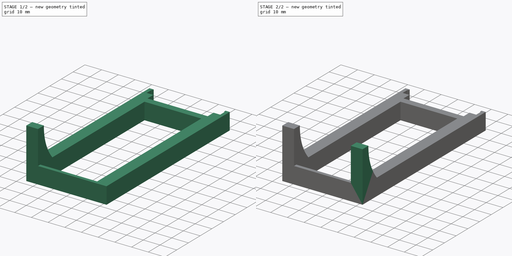
[diagram: build sequence overview — one tinted view per stage of 2, left to right]
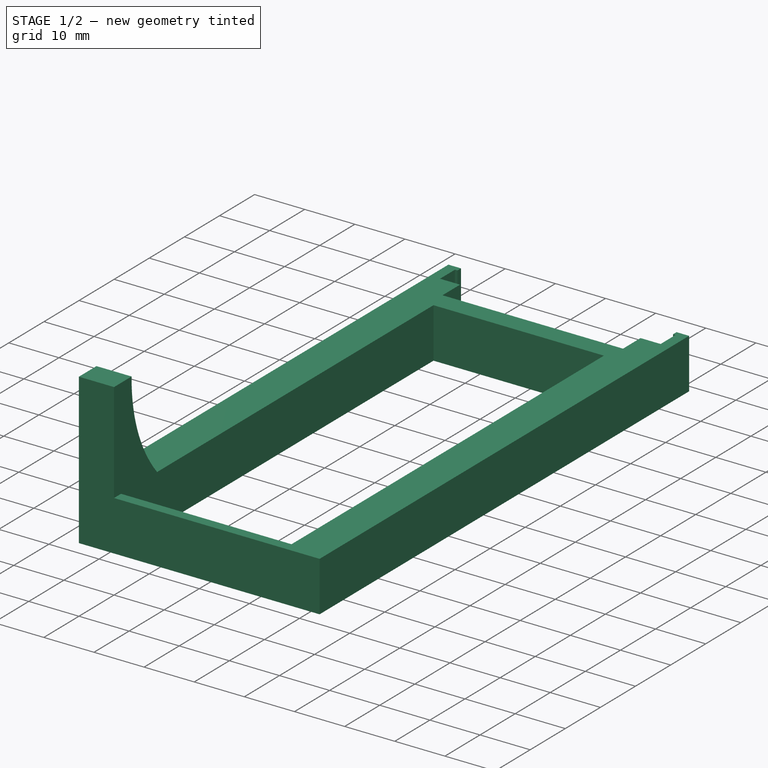
[diagram: stage 1 of 2 — iso view after this stage's code; geometry added in this stage tinted green]
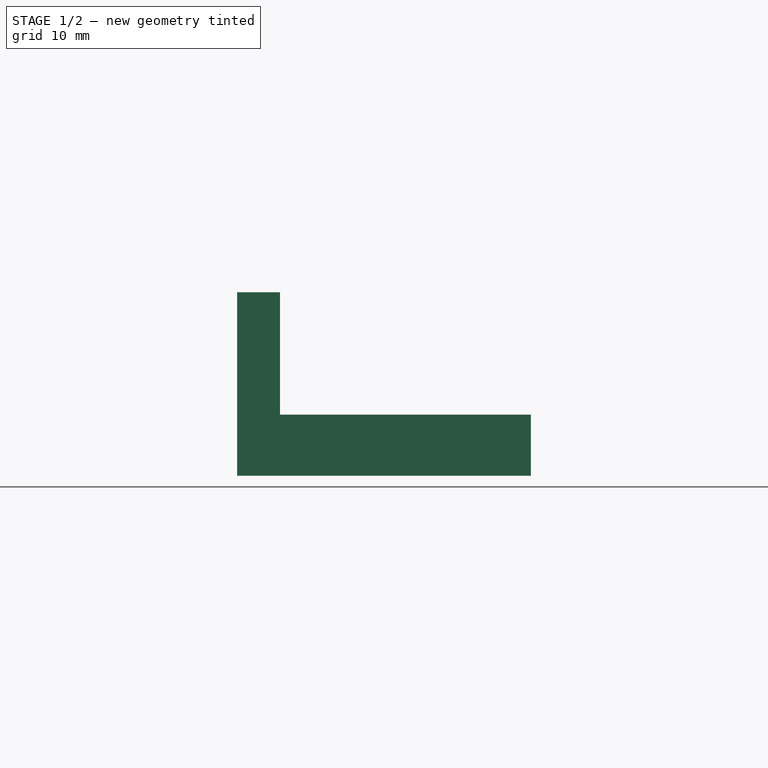
[diagram: stage 1 of 2 — front view after this stage's code; geometry added in this stage tinted green]
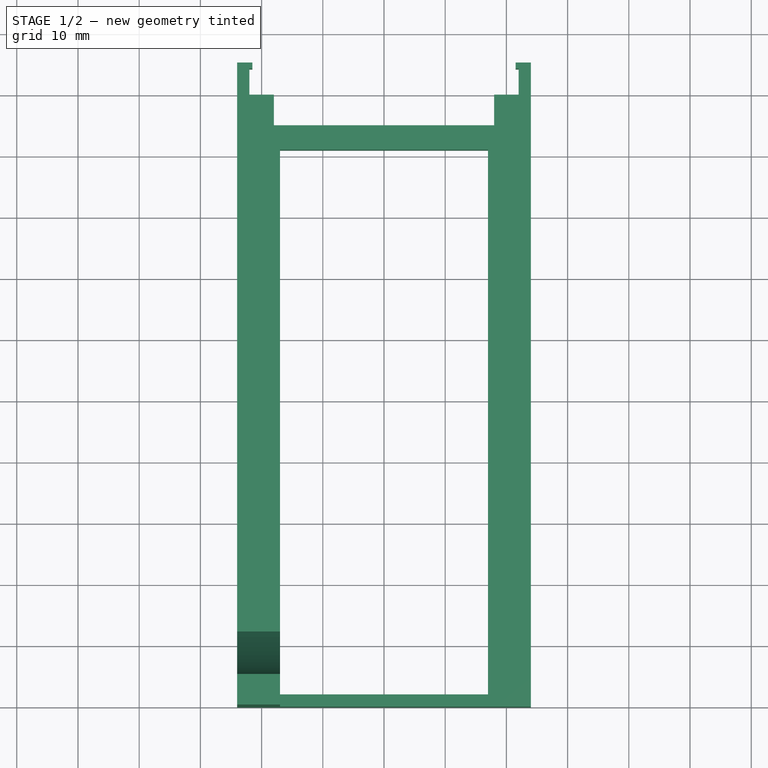
[diagram: stage 1 of 2 — top view after this stage's code; geometry added in this stage tinted green]
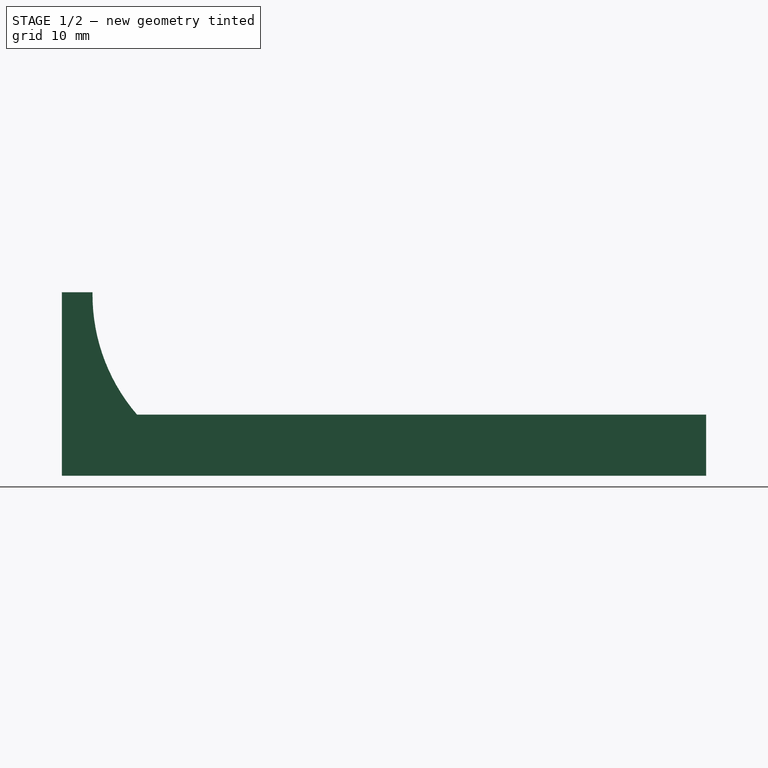
[diagram: stage 1 of 2 — right view after this stage's code; geometry added in this stage tinted green]
FCSTD DOCUMENT  (FreeCAD 0.18R15441 (Git))
Label: XZAxisMaintenanceStand_Right
License: All rights reserved
LicenseURL: http://en.wikipedia.org/wiki/All_rights_reserved
objects: Sketcher::SketchObject×3, PartDesign::Pad×3, PartDesign::Plane×2, PartDesign::Body×1, Part::FeaturePython×1, App::Part×1
note: 13 computed .brp shape members not serialized (recipe doc carries the construction recipe); baked Part::Feature solids carry a one-line shape summary decoded from their .brp

FEATURE [Sketcher::SketchObject] Sketch  label="BaseSketch"
  MapMode = 5
  Support = -> [XY_Plane001]
  sketch-geometry (20):
    g0: LineSegment StartX=-22 StartY=0 StartZ=0 EndX=-18 EndY=0 EndZ=0
    g1: LineSegment StartX=-18 StartY=0 StartZ=0 EndX=-18 EndY=-5 EndZ=0
    g2: LineSegment StartX=-18 StartY=-5 StartZ=0 EndX=18 EndY=-5 EndZ=0
    g3: LineSegment StartX=18 StartY=-5 StartZ=0 EndX=18 EndY=0 EndZ=0
    g4: LineSegment StartX=18 StartY=0 StartZ=0 EndX=22 EndY=0 EndZ=0
    g5: LineSegment StartX=-22 StartY=4.25 StartZ=0 EndX=-21.5 EndY=4.25 EndZ=0
    g6: LineSegment StartX=22 StartY=4.25 StartZ=0 EndX=21.5 EndY=4.25 EndZ=0
    g7: LineSegment StartX=21.5 StartY=4.25 StartZ=0 EndX=21.5 EndY=5.25 EndZ=0
    g8: LineSegment StartX=21.5 StartY=5.25 StartZ=0 EndX=24 EndY=5.25 EndZ=0
    g9: LineSegment StartX=24 StartY=5.25 StartZ=0 EndX=24 EndY=-100 EndZ=0
    g10: LineSegment StartX=-21.5 StartY=4.25 StartZ=0 EndX=-21.5 EndY=5.25 EndZ=0
    g11: LineSegment StartX=-21.5 StartY=5.25 StartZ=0 EndX=-24 EndY=5.25 EndZ=0
    g12: LineSegment StartX=-24 StartY=5.25 StartZ=0 EndX=-24 EndY=-100 EndZ=0
    g13: LineSegment StartX=-17 StartY=-9 StartZ=0 EndX=17 EndY=-9 EndZ=0
    g14: LineSegment StartX=-22 StartY=4.25 StartZ=0 EndX=-22 EndY=0 EndZ=0
    g15: LineSegment StartX=22 StartY=0 StartZ=0 EndX=22 EndY=4.25 EndZ=0
    g16: LineSegment StartX=17 StartY=-9 StartZ=0 EndX=17 EndY=-98 EndZ=0
    g17: LineSegment StartX=-17 StartY=-9 StartZ=0 EndX=-17 EndY=-98 EndZ=0
    g18: LineSegment StartX=-17 StartY=-98 StartZ=0 EndX=17 EndY=-98 EndZ=0
    g19: LineSegment StartX=-24 StartY=-100 StartZ=0 EndX=24 EndY=-100 EndZ=0
  constraints (59):
    c: PointOnObject(g0,g-1)
    c: Coincident(g1,g0)
    c: Coincident(g2,g1)
    c: Horizontal(g2)
    c: Coincident(g3,g2)
    c: Vertical(g3)
    c: Coincident(g4,g3)
    c: Horizontal(g0)
    c: Horizontal(g4)
    c: Vertical(g1)
    c: Symmetric(g0,g4,g-2)
    c: Equal(g0,g4)
    c: Horizontal(g5)
    c: Horizontal(g6)
    c: Coincident(g7,g6)
    c: Vertical(g7)
    c: Coincident(g8,g7)
    c: Horizontal(g8)
    c: Coincident(g9,g8)
    c: Vertical(g9)
    c: Coincident(g10,g5)
    c: Vertical(g10)
    c: Coincident(g11,g10)
    c: Horizontal(g11)
    c: Coincident(g12,g11)
    c: Vertical(g12)
    c: Equal(g8,g11)
    c: Equal(g5,g6)
    c: Equal(g10,g7)
    c: Equal(g12,g9)
    c: Horizontal(g13)
    c: Distance(g0,g4) = 44
    c: Distance(g5) = 0.5
    c: Distance(g10) = 1
    c: Distance(g13,g2) = 4
    c: Distance(g0) = 4
    c: Distance(g1) = 5
    c: Coincident(g14,g5)
    c: Vertical(g14)
    c: Coincident(g15,g6)
    c: Vertical(g15)
    c: Equal(g14,g15)
    c: Distance(g5,g0) = 4.25
    c: Coincident(g16,g13)
    c: Vertical(g16)
    c: Coincident(g17,g13)
    c: Vertical(g17)
    c: Coincident(g18,g17)
    c: Coincident(g18,g16)
    c: Coincident(g19,g12)
    c: Coincident(g19,g9)
    c: Horizontal(g18)
    c: Distance(g17,g12) = 7
    c: Distance(g17,g19) = 2
    c: Distance(g16,g9) = 7
    c: Coincident(g14,g0)
    c: Coincident(g15,g4)
    c: Distance(g0,g12) = 2
    c: Distance(g0,g19) = 100
FEATURE [PartDesign::Pad] Pad  label="BasePad"
  Length = 10
  Length2 = 100
  Profile = -> Sketch
  Type = 0
FEATURE [PartDesign::Plane] DatumPlane  label="SupportPlane1"
  AttachmentOffset = pos=(0,0,-17) rot=(0,0,1;0rad)
  Length = 123.266
  MapMode = 5
  Placement = pos=(-17,1.9195e-12,-1.9195e-12) rot=(0.57735,0.57735,0.57735;2.0944rad)
  ResizeMode = 0
  Support = -> [YZ_Plane001]
  Width = 53.2665
FEATURE [PartDesign::Plane] DatumPlane001  label="SupportPlane2"
  AttachmentOffset = pos=(0,0,17) rot=(0,0,1;0rad)
  Length = 123.266
  MapMode = 5
  Placement = pos=(17,-1.9195e-12,1.9195e-12) rot=(0.57735,0.57735,0.57735;2.0944rad)
  ResizeMode = 0
  Support = -> [YZ_Plane001]
  Width = 53.2665
FEATURE [Sketcher::SketchObject] Sketch001  label="SupportSketch1"
  ExternalGeometry = -> [Sketch]
  MapMode = 5
  Placement = pos=(-17,1.9195e-12,-1.9195e-12) rot=(0.57735,0.57735,0.57735;2.0944rad)
  Support = -> [DatumPlane]
  sketch-geometry (5):
    g0: LineSegment StartX=-100 StartY=-8.5827e-12 StartZ=0 EndX=-100 EndY=30 EndZ=0
    g1: ArcOfCircle CenterX=-65.0029 CenterY=29.5809 CenterZ=0 NormalX=0 NormalY=0 NormalZ=1 AngleXU=0 Radius=30 StartAngle=3.12762 EndAngle=4.54504
    g2: LineSegment [constr] StartX=-100 StartY=29.5809 StartZ=0 EndX=-65.0029 EndY=29.5809 EndZ=0
    g3: LineSegment StartX=-100 StartY=-8.5827e-12 StartZ=0 EndX=-70 EndY=-8.5827e-12 EndZ=0
    g4: LineSegment StartX=-95 StartY=30 StartZ=0 EndX=-100 EndY=30 EndZ=0
  constraints (15):
    c: Vertical(g0)
    c: Coincident(g2,g1)
    c: Horizontal(g2)
    c: Coincident(g3,g0)
    c: Coincident(g3,g1)
    c: Horizontal(g3)
    c: Radius(g1) = 30
    c: Distance(g1,g3) = 30
    c: Coincident(g4,g1)
    c: Coincident(g4,g0)
    c: Horizontal(g4)
    c: Distance(g4) = 5
    c: PointOnObject(g2,g0)
    c: Equal(g0,g3)
    c: Coincident(g0,g-3)
FEATURE [PartDesign::Pad] Pad001  label="SupportPad1"
  BaseFeature = -> Pad
  Length = 7
  Length2 = 100
  Profile = -> Sketch001
  Reversed = true
  Type = 0
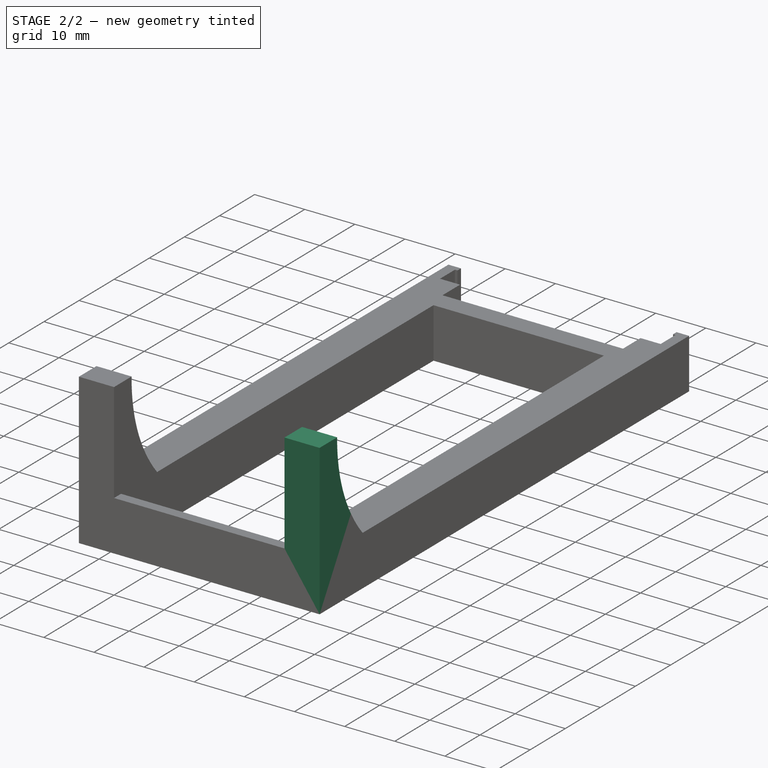
[diagram: stage 2 of 2 — iso view after this stage's code; geometry added in this stage tinted green]
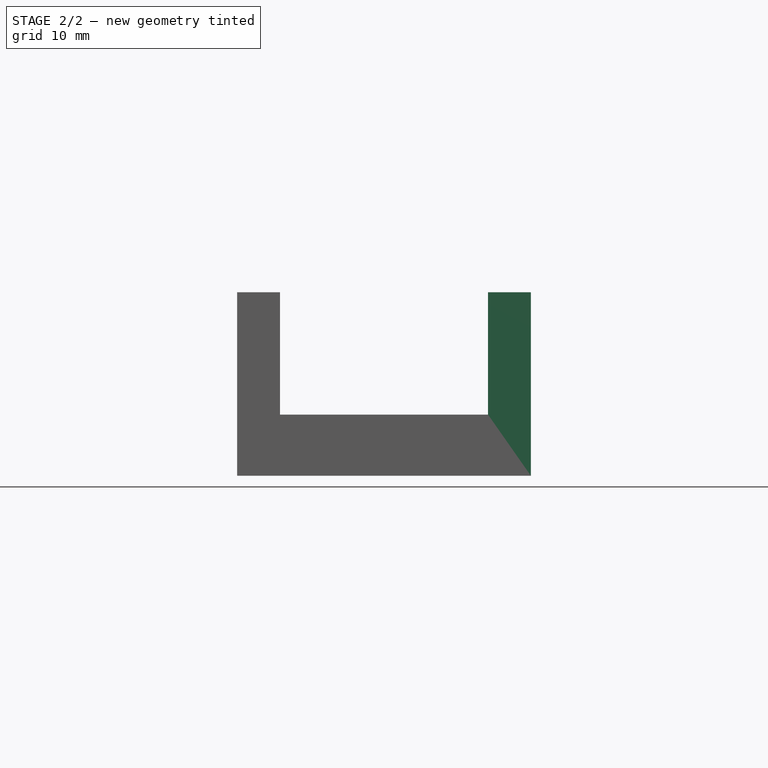
[diagram: stage 2 of 2 — front view after this stage's code; geometry added in this stage tinted green]
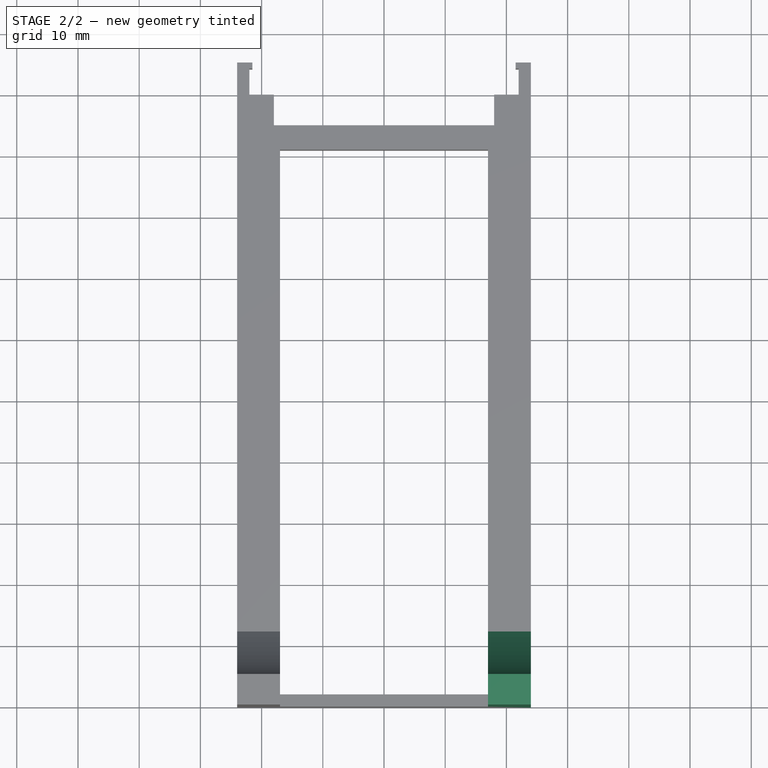
[diagram: stage 2 of 2 — top view after this stage's code; geometry added in this stage tinted green]
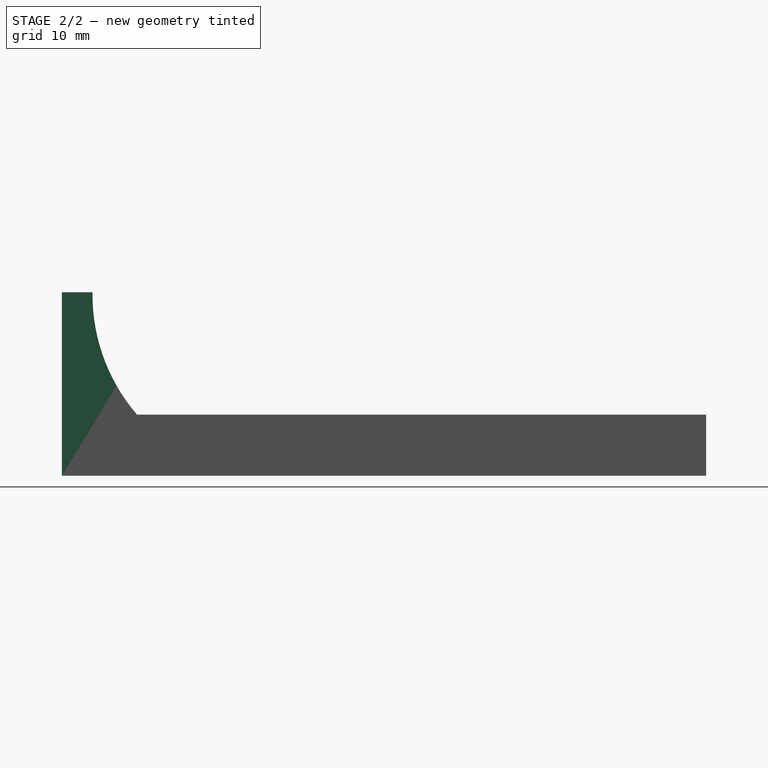
[diagram: stage 2 of 2 — right view after this stage's code; geometry added in this stage tinted green]
FEATURE [Sketcher::SketchObject] Sketch002  label="SupportSketch2"
  ExternalGeometry = -> [Sketch]
  MapMode = 5
  Placement = pos=(17,-1.9195e-12,1.9195e-12) rot=(0.57735,0.57735,0.57735;2.0944rad)
  Support = -> [DatumPlane001]
  sketch-geometry (5):
    g0: LineSegment StartX=-100 StartY=-8.5902e-12 StartZ=0 EndX=-100 EndY=30 EndZ=0
    g1: ArcOfCircle CenterX=-65.0029 CenterY=29.5809 CenterZ=0 NormalX=0 NormalY=0 NormalZ=1 AngleXU=0 Radius=30 StartAngle=3.12762 EndAngle=4.54504
    g2: LineSegment [constr] StartX=-100 StartY=29.5809 StartZ=0 EndX=-65.0029 EndY=29.5809 EndZ=0
    g3: LineSegment StartX=-100 StartY=-8.5902e-12 StartZ=0 EndX=-70 EndY=-8.5902e-12 EndZ=0
    g4: LineSegment StartX=-95 StartY=30 StartZ=0 EndX=-100 EndY=30 EndZ=0
  constraints (15):
    c: Vertical(g0)
    c: Coincident(g2,g1)
    c: Horizontal(g2)
    c: Coincident(g3,g0)
    c: Coincident(g3,g1)
    c: Horizontal(g3)
    c: Radius(g1) = 30
    c: Distance(g1,g3) = 30
    c: Coincident(g4,g1)
    c: Coincident(g4,g0)
    c: Horizontal(g4)
    c: Distance(g4) = 5
    c: PointOnObject(g2,g0)
    c: Equal(g0,g3)
    c: Coincident(g0,g-3)
FEATURE [PartDesign::Pad] Pad002  label="SupportPad2"
  BaseFeature = -> Pad001
  Length = 7
  Length2 = 100
  Profile = -> Sketch002
  Type = 0
FEATURE [PartDesign::Body] Body  label="StandBody"
  Group = -> [Sketch,Pad,DatumPlane,DatumPlane001,Sketch001,Pad001,Sketch002,Pad002]
  Origin = -> Origin001
  Tip = -> Pad002
FEATURE [Part::FeaturePython] refine  label="StandBody_Refined"  # WARN: FeaturePython — macro-defined, semantics opaque (R4)
  Base = -> Body
FEATURE [App::Part] Part  label="RightStandPart"
  Group = -> [Body,refine]
  License = CC BY 3.0
  LicenseURL = http://creativecommons.org/licenses/by/3.0/
  Origin = -> Origin
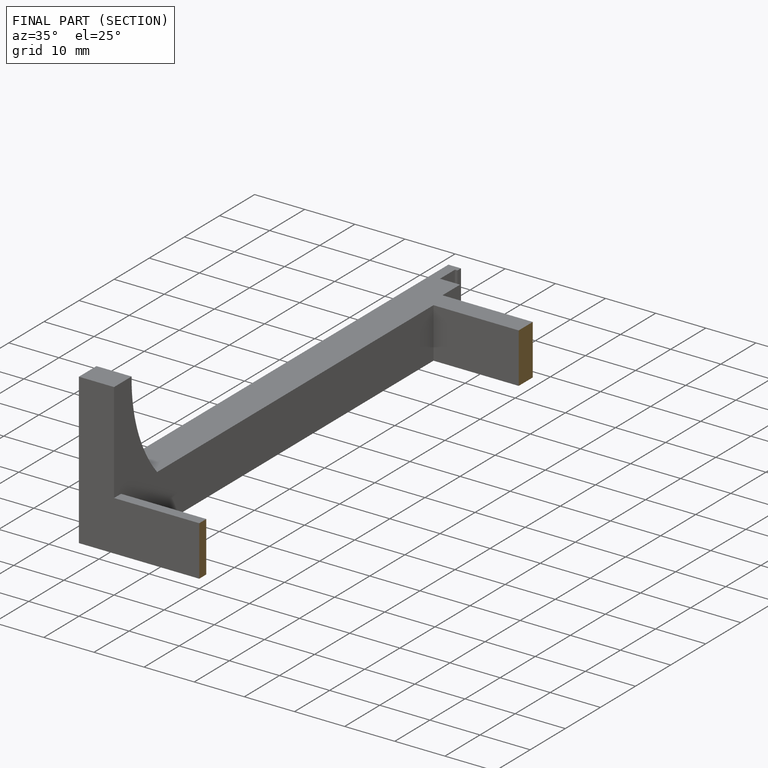
[diagram: finished part — half-section view (interior)]
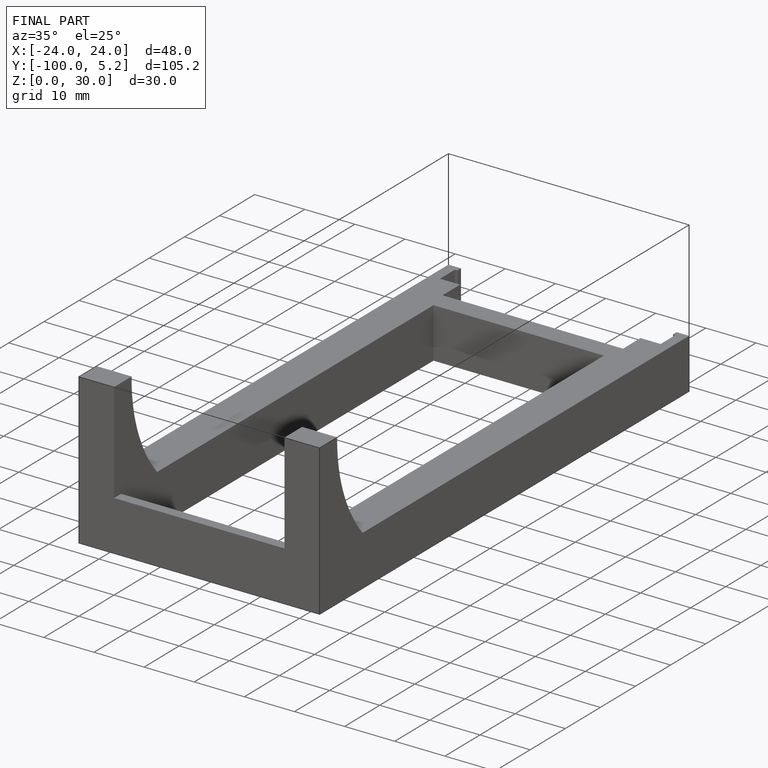
[diagram: finished part — iso view with bounding-box wireframe]
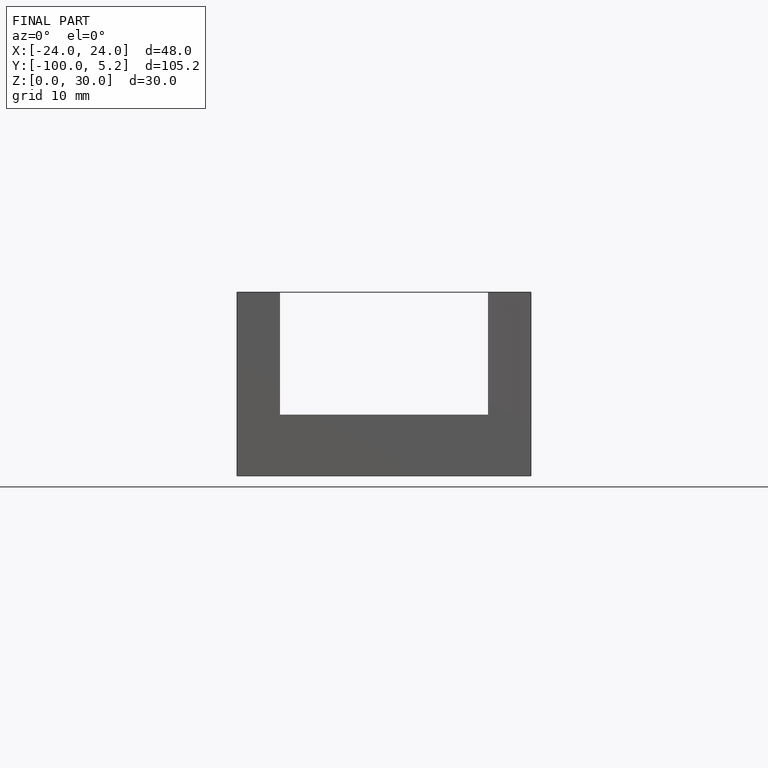
[diagram: finished part — front view with bounding-box wireframe]
